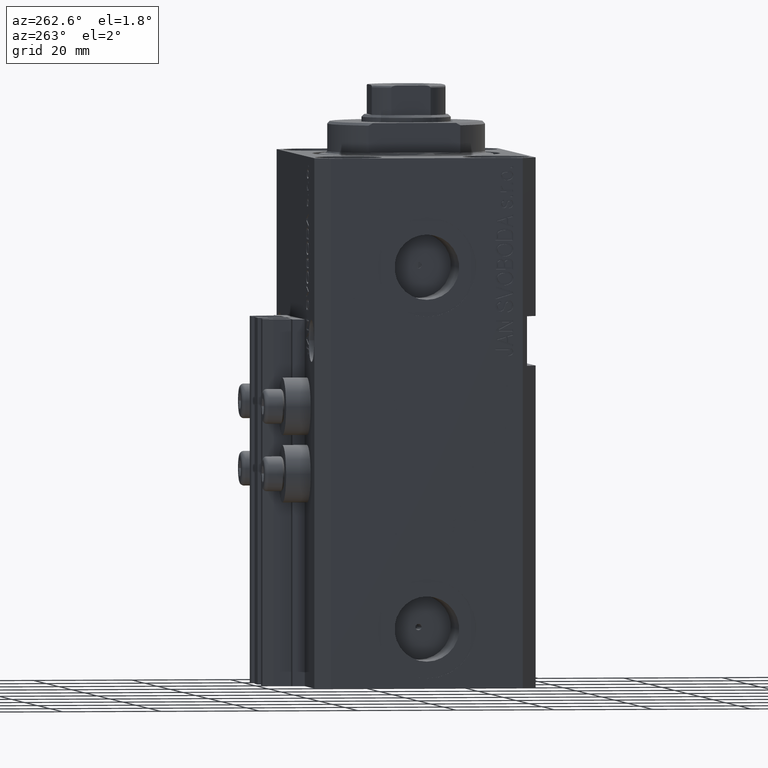
[diagram: clean part render]
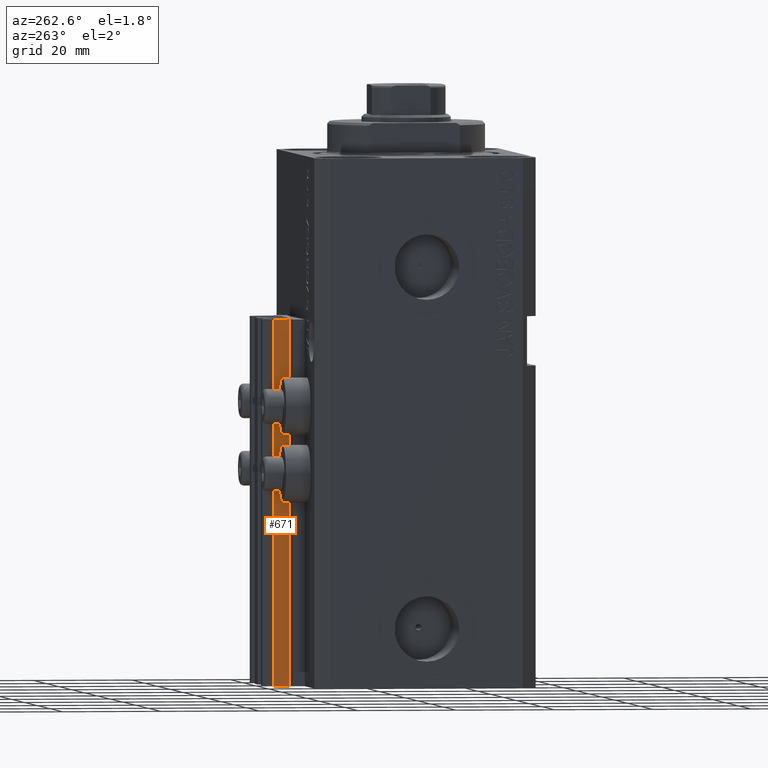
[diagram: same view with one face highlighted and labeled with its STEP entity id]
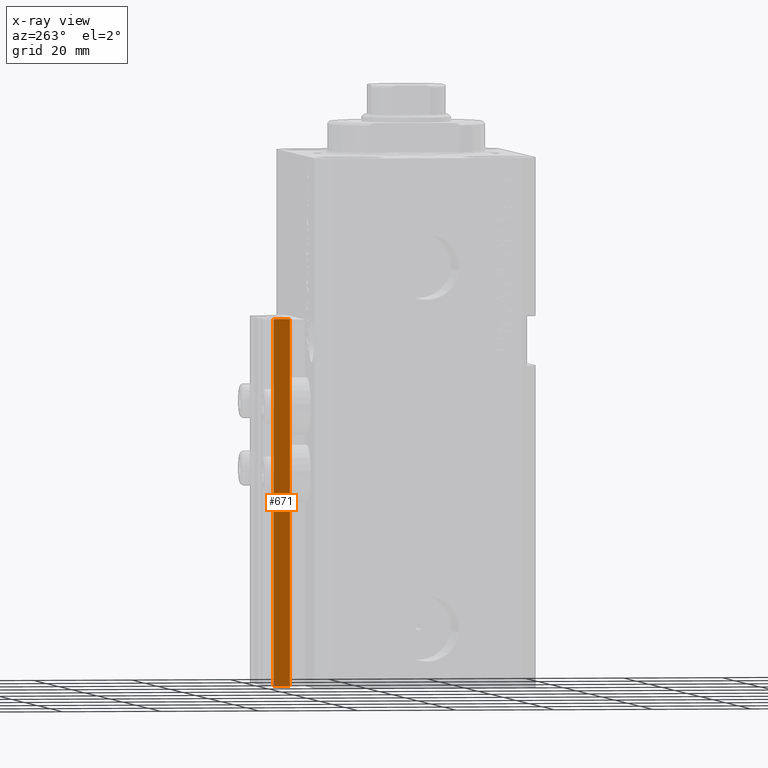
[diagram: x-ray of the same camera — body ghosted, the highlighted face saturated]
A machine part, auxiliary view. The second image highlights one B-rep face of the part: STEP entity #671.
The next image is the same camera in x-ray: the body ghosted, the highlighted face saturated — about 0% of this face is hidden behind the body in this view.
In plain terms, the highlighted planar face has unit normal (-1, 0, 0).
Its self-contained STEP definition (entity closure, byte-faithful):
#77 = CARTESIAN_POINT ( 'NONE',  ( -12.00000000000000000, 28.49999999999948841, -33.00000000000000000 ) ) ;
#325 = VERTEX_POINT ( 'NONE', #23227 ) ;
#671 = ADVANCED_FACE ( 'NONE', ( #4272 ), #22405, .T. ) ;
#782 = EDGE_LOOP ( 'NONE', ( #35589, #964, #41325, #14627 ) ) ;
#964 = ORIENTED_EDGE ( 'NONE', *, *, #34351, .F. ) ;
#4011 = EDGE_CURVE ( 'NONE', #35063, #325, #35875, .T. ) ;
#4272 = FACE_OUTER_BOUND ( 'NONE', #782, .T. ) ;
#6355 = EDGE_CURVE ( 'NONE', #19268, #37852, #17776, .T. ) ;
#7631 = LINE ( 'NONE', #40544, #39328 ) ;
#10451 = DIRECTION ( 'NONE',  ( 0.000000000000000000, 0.000000000000000000, 1.000000000000000000 ) ) ;
#11809 = CARTESIAN_POINT ( 'NONE',  ( -12.00000000000000000, 28.49999999999948841, -107.0000000000000000 ) ) ;
#11970 = CARTESIAN_POINT ( 'NONE',  ( -12.00000000000000000, 28.49999999999948841, -107.0000000000000000 ) ) ;
#14627 = ORIENTED_EDGE ( 'NONE', *, *, #25868, .T. ) ;
#16090 = CARTESIAN_POINT ( 'NONE',  ( -12.00000000000000000, 28.49999999999948841, -33.00000000000000000 ) ) ;
#17776 = LINE ( 'NONE', #11809, #41013 ) ;
#19268 = VERTEX_POINT ( 'NONE', #11970 ) ;
#20057 = VECTOR ( 'NONE', #25590, 1000.000000000000000 ) ;
#22405 = PLANE ( 'NONE',  #39677 ) ;
#22735 = CARTESIAN_POINT ( 'NONE',  ( -12.00000000000000000, 25.19999999999949125, -107.0000000000000000 ) ) ;
#23227 = CARTESIAN_POINT ( 'NONE',  ( -12.00000000000000000, 25.19999999999949125, -33.00000000000000000 ) ) ;
#25590 = DIRECTION ( 'NONE',  ( 0.000000000000000000, -1.000000000000000000, 0.000000000000000000 ) ) ;
#25868 = EDGE_CURVE ( 'NONE', #37852, #325, #38865, .T. ) ;
#25873 = DIRECTION ( 'NONE',  ( 0.000000000000000000, -1.000000000000000000, 0.000000000000000000 ) ) ;
#29792 = CARTESIAN_POINT ( 'NONE',  ( -12.00000000000000000, 28.49999999999948841, -107.0000000000000000 ) ) ;
#32912 = DIRECTION ( 'NONE',  ( -1.000000000000000000, 0.000000000000000000, 0.000000000000000000 ) ) ;
#34351 = EDGE_CURVE ( 'NONE', #19268, #35063, #7631, .T. ) ;
#35063 = VERTEX_POINT ( 'NONE', #16090 ) ;
#35589 = ORIENTED_EDGE ( 'NONE', *, *, #4011, .F. ) ;
#35875 = LINE ( 'NONE', #77, #20057 ) ;
#37852 = VERTEX_POINT ( 'NONE', #22735 ) ;
#38865 = LINE ( 'NONE', #47164, #39232 ) ;
#39232 = VECTOR ( 'NONE', #10451, 1000.000000000000000 ) ;
#39328 = VECTOR ( 'NONE', #39599, 1000.000000000000000 ) ;
#39599 = DIRECTION ( 'NONE',  ( 0.000000000000000000, 0.000000000000000000, 1.000000000000000000 ) ) ;
#39677 = AXIS2_PLACEMENT_3D ( 'NONE', #29792, #32912, #44349 ) ;
#40544 = CARTESIAN_POINT ( 'NONE',  ( -12.00000000000000000, 28.49999999999948841, -107.0000000000000000 ) ) ;
#41013 = VECTOR ( 'NONE', #25873, 1000.000000000000000 ) ;
#41325 = ORIENTED_EDGE ( 'NONE', *, *, #6355, .T. ) ;
#44349 = DIRECTION ( 'NONE',  ( 0.000000000000000000, 0.000000000000000000, 1.000000000000000000 ) ) ;
#47164 = CARTESIAN_POINT ( 'NONE',  ( -12.00000000000000000, 25.19999999999949125, -107.0000000000000000 ) ) ;